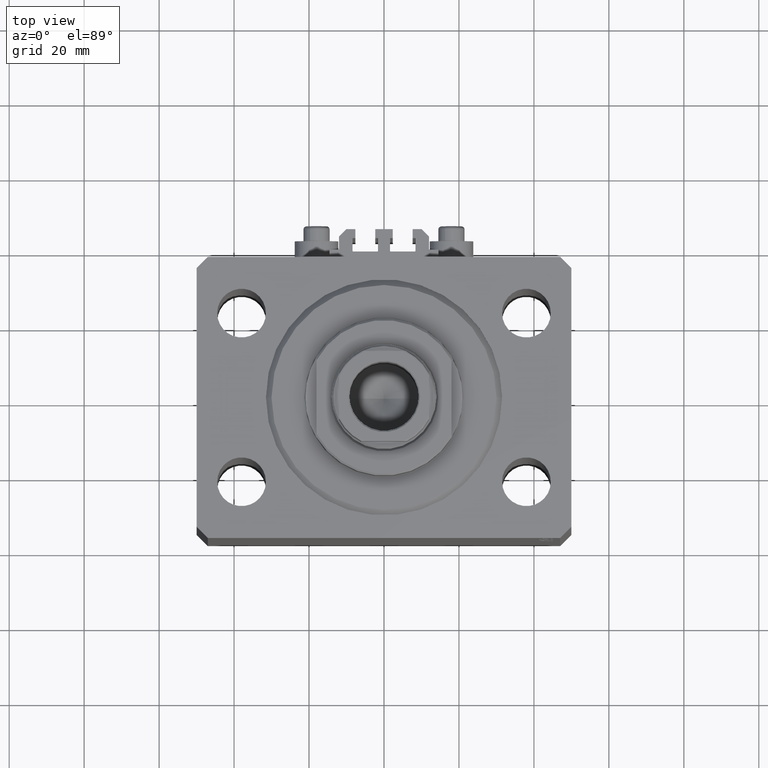
[diagram: clean part render]
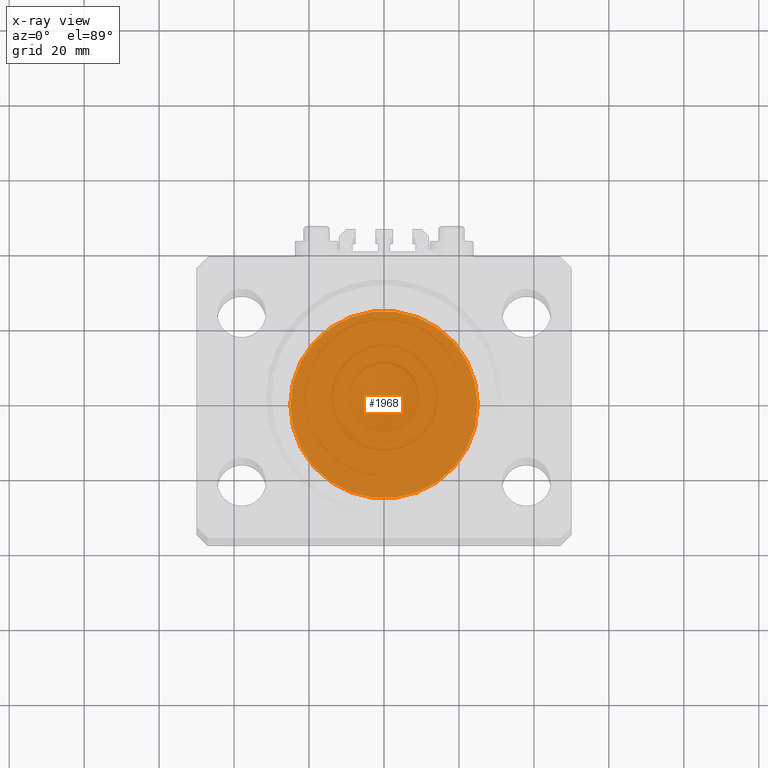
[diagram: x-ray — body ghosted, one internal face saturated and labeled with its STEP entity id]
A machine part, top view, then the same camera in x-ray: the body is ghosted and one INTERNAL B-rep face — a face not visible from any outside direction — is saturated and labeled: STEP entity #1968.
In plain terms, the highlighted planar face has unit normal (0, 0, 1).
Its self-contained STEP definition (entity closure, byte-faithful):
#1968 = ADVANCED_FACE ( 'NONE', ( #24553 ), #38919, .F. ) ;
#6355 = DIRECTION ( 'NONE',  ( 0.000000000000000000, 0.000000000000000000, 1.000000000000000000 ) ) ;
#11195 = ORIENTED_EDGE ( 'NONE', *, *, #40493, .F. ) ;
#11293 = CIRCLE ( 'NONE', #15895, 25.00000000000000000 ) ;
#13088 = DIRECTION ( 'NONE',  ( 1.000000000000000000, 0.000000000000000000, -0.000000000000000000 ) ) ;
#13314 = CARTESIAN_POINT ( 'NONE',  ( 0.000000000000000000, 0.000000000000000000, 0.000000000000000000 ) ) ;
#13888 = DIRECTION ( 'NONE',  ( 0.000000000000000000, 0.000000000000000000, 1.000000000000000000 ) ) ;
#14991 = DIRECTION ( 'NONE',  ( 1.000000000000000000, 0.000000000000000000, 0.000000000000000000 ) ) ;
#15895 = AXIS2_PLACEMENT_3D ( 'NONE', #21523, #13888, #36126 ) ;
#17935 = CARTESIAN_POINT ( 'NONE',  ( -25.00000000000000000, 0.000000000000000000, 0.000000000000000000 ) ) ;
#20000 = VERTEX_POINT ( 'NONE', #39691 ) ;
#20795 = CIRCLE ( 'NONE', #42170, 25.00000000000000000 ) ;
#21523 = CARTESIAN_POINT ( 'NONE',  ( 0.000000000000000000, 0.000000000000000000, 0.000000000000000000 ) ) ;
#22625 = DIRECTION ( 'NONE',  ( 0.000000000000000000, 0.000000000000000000, 1.000000000000000000 ) ) ;
#24553 = FACE_OUTER_BOUND ( 'NONE', #26615, .T. ) ;
#25302 = EDGE_CURVE ( 'NONE', #20000, #28801, #20795, .T. ) ;
#26615 = EDGE_LOOP ( 'NONE', ( #11195, #29689 ) ) ;
#28801 = VERTEX_POINT ( 'NONE', #17935 ) ;
#29689 = ORIENTED_EDGE ( 'NONE', *, *, #25302, .F. ) ;
#36126 = DIRECTION ( 'NONE',  ( 1.000000000000000000, 0.000000000000000000, 0.000000000000000000 ) ) ;
#38919 = PLANE ( 'NONE',  #45318 ) ;
#39691 = CARTESIAN_POINT ( 'NONE',  ( 25.00000000000000000, 3.061616997868383043E-15, 0.000000000000000000 ) ) ;
#40493 = EDGE_CURVE ( 'NONE', #28801, #20000, #11293, .T. ) ;
#40561 = CARTESIAN_POINT ( 'NONE',  ( 0.000000000000000000, 0.000000000000000000, 0.000000000000000000 ) ) ;
#42170 = AXIS2_PLACEMENT_3D ( 'NONE', #40561, #22625, #14991 ) ;
#45318 = AXIS2_PLACEMENT_3D ( 'NONE', #13314, #6355, #13088 ) ;